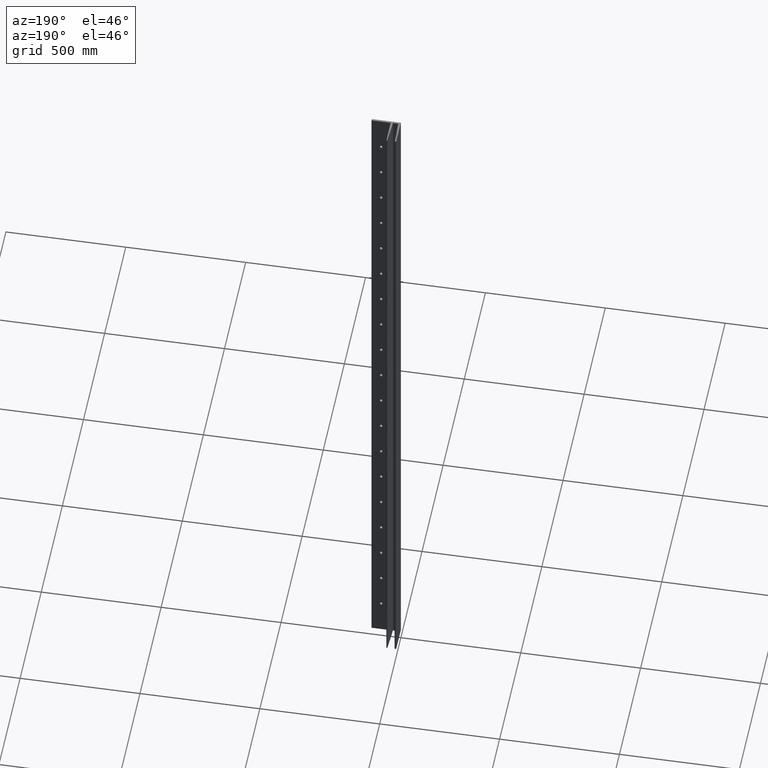
[diagram: clean part render]
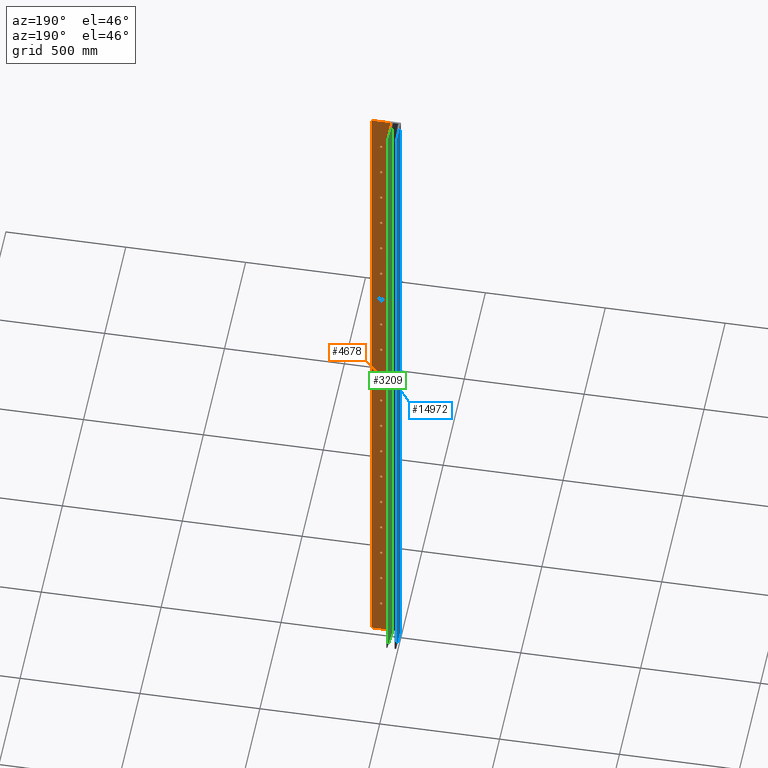
[diagram: same view with three faces highlighted in distinct colors, each labeled with its STEP entity id]
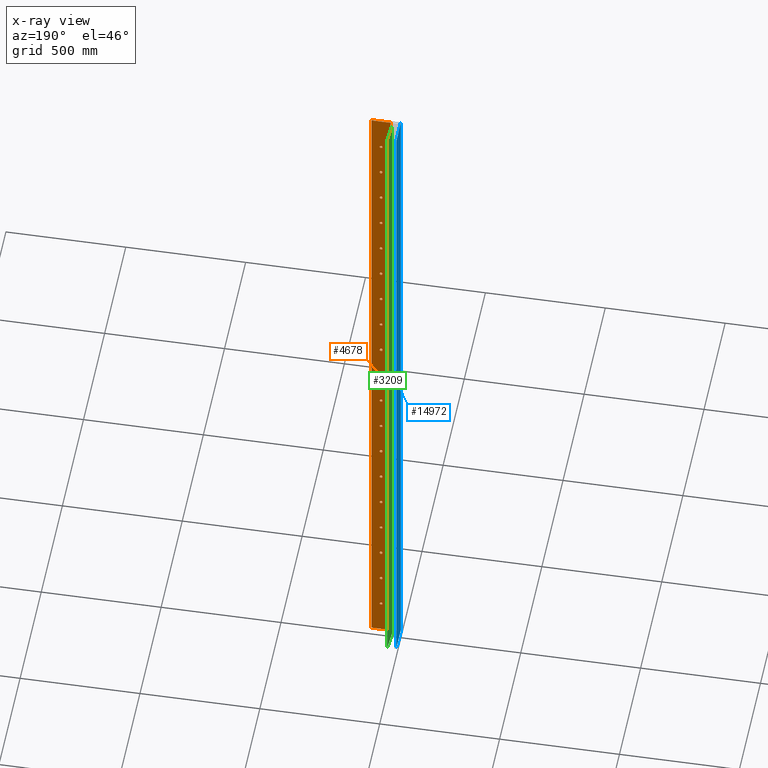
[diagram: x-ray of the same camera — body ghosted, the three highlighted faces saturated]
A machine part, auxiliary view with three faces highlighted in distinct colors.
The next image is the same camera in x-ray (body ghosted, the three faces saturated) — at least one of them is partly hidden behind the body in this view.
Their STEP definitions:

[orange] entity #4678 — the highlighted planar face has unit normal (0, -1, 0).
#78 = DIRECTION ( 'NONE',  ( 1.000000000000000000, 1.951563910473245800E-016, 0.0000000000000000000 ) ) ;
#90 = ORIENTED_EDGE ( 'NONE', *, *, #14719, .F. ) ;
#99 = CARTESIAN_POINT ( 'NONE',  ( 81.00000000000930800, 7.999999999864759700, -599.9999999999998900 ) ) ;
#195 = CARTESIAN_POINT ( 'NONE',  ( 87.00000000000932200, 7.999999999864761500, 1200.000000000000200 ) ) ;
#233 = EDGE_CURVE ( 'NONE', #5815, #13316, #5608, .T. ) ;
#296 = AXIS2_PLACEMENT_3D ( 'NONE', #7518, #3784, #15060 ) ;
#297 = CARTESIAN_POINT ( 'NONE',  ( 81.00000000000930800, 7.999999999864759700, 300.0000000000001700 ) ) ;
#313 = CIRCLE ( 'NONE', #7025, 6.000000000000005300 ) ;
#315 = EDGE_CURVE ( 'NONE', #6157, #15670, #2877, .T. ) ;
#339 = DIRECTION ( 'NONE',  ( -1.000000000000000000, -1.951563910473246100E-016, 0.0000000000000000000 ) ) ;
#379 = FACE_BOUND ( 'NONE', #2876, .T. ) ;
#388 = DIRECTION ( 'NONE',  ( -1.951563910473245800E-016, 1.000000000000000000, 0.0000000000000000000 ) ) ;
#443 = ORIENTED_EDGE ( 'NONE', *, *, #1300, .F. ) ;
#444 = CARTESIAN_POINT ( 'NONE',  ( 87.00000000000932200, 7.999999999864761500, 600.0000000000002300 ) ) ;
#468 = AXIS2_PLACEMENT_3D ( 'NONE', #11869, #15977, #13331 ) ;
#505 = CIRCLE ( 'NONE', #1220, 6.000000000000005300 ) ;
#535 = ORIENTED_EDGE ( 'NONE', *, *, #15153, .F. ) ;
#547 = DIRECTION ( 'NONE',  ( -1.951563910473245800E-016, 1.000000000000000000, 0.0000000000000000000 ) ) ;
#554 = DIRECTION ( 'NONE',  ( -1.000000000000000000, -2.891205793294675900E-016, 0.0000000000000000000 ) ) ;
#557 = EDGE_CURVE ( 'NONE', #2233, #9873, #14331, .T. ) ;
#565 = DIRECTION ( 'NONE',  ( -1.951563910473245800E-016, 1.000000000000000000, 0.0000000000000000000 ) ) ;
#581 = CIRCLE ( 'NONE', #10435, 6.000000000000005300 ) ;
#603 = DIRECTION ( 'NONE',  ( -1.000000000000000000, -2.891205793294675900E-016, 0.0000000000000000000 ) ) ;
#610 = EDGE_CURVE ( 'NONE', #13746, #15010, #3851, .T. ) ;
#650 = EDGE_CURVE ( 'NONE', #12594, #6607, #1889, .T. ) ;
#689 = CIRCLE ( 'NONE', #15582, 6.000000000000005300 ) ;
#705 = VERTEX_POINT ( 'NONE', #9364 ) ;
#838 = CARTESIAN_POINT ( 'NONE',  ( 87.00000000000932200, 7.999999999864761500, -449.9999999999997200 ) ) ;
#845 = VERTEX_POINT ( 'NONE', #15032 ) ;
#900 = CIRCLE ( 'NONE', #12807, 6.000000000000005300 ) ;
#955 = AXIS2_PLACEMENT_3D ( 'NONE', #3298, #12053, #10710 ) ;
#1035 = CARTESIAN_POINT ( 'NONE',  ( 121.0000000000093200, 7.999999999864767700, 1500.000000000000000 ) ) ;
#1124 = CARTESIAN_POINT ( 'NONE',  ( 81.00000000000930800, 7.999999999864759700, 1200.000000000000200 ) ) ;
#1130 = VERTEX_POINT ( 'NONE', #4716 ) ;
#1161 = EDGE_CURVE ( 'NONE', #15577, #10302, #689, .T. ) ;
#1216 = CARTESIAN_POINT ( 'NONE',  ( 87.00000000000932200, 7.999999999864761500, 750.0000000000002300 ) ) ;
#1220 = AXIS2_PLACEMENT_3D ( 'NONE', #9104, #1753, #8920 ) ;
#1231 = EDGE_LOOP ( 'NONE', ( #4234, #13392 ) ) ;
#1300 = EDGE_CURVE ( 'NONE', #12245, #5544, #9339, .T. ) ;
#1325 = EDGE_LOOP ( 'NONE', ( #2210, #13854 ) ) ;
#1341 = ORIENTED_EDGE ( 'NONE', *, *, #11865, .F. ) ;
#1442 = ORIENTED_EDGE ( 'NONE', *, *, #557, .F. ) ;
#1486 = DIRECTION ( 'NONE',  ( -1.951563910473245800E-016, 1.000000000000000000, 0.0000000000000000000 ) ) ;
#1523 = CIRCLE ( 'NONE', #15834, 6.000000000000005300 ) ;
#1690 = ORIENTED_EDGE ( 'NONE', *, *, #4257, .T. ) ;
#1740 = VECTOR ( 'NONE', #4839, 1000.000000000000000 ) ;
#1742 = CARTESIAN_POINT ( 'NONE',  ( 81.00000000000930800, 7.999999999864759700, -299.9999999999998300 ) ) ;
#1753 = DIRECTION ( 'NONE',  ( -1.951563910473245800E-016, 1.000000000000000000, 0.0000000000000000000 ) ) ;
#1763 = CARTESIAN_POINT ( 'NONE',  ( 81.00000000000930800, 7.999999999864759700, 2.220446049250313100E-013 ) ) ;
#1770 = FACE_BOUND ( 'NONE', #1231, .T. ) ;
#1787 = CARTESIAN_POINT ( 'NONE',  ( 75.00000000000930800, 7.999999999864758000, -1049.999999999999800 ) ) ;
#1808 = AXIS2_PLACEMENT_3D ( 'NONE', #11632, #5382, #3572 ) ;
#1889 = CIRCLE ( 'NONE', #8483, 6.000000000000005300 ) ;
#1906 = VERTEX_POINT ( 'NONE', #1035 ) ;
#2015 = CARTESIAN_POINT ( 'NONE',  ( 81.00000000000930800, 7.999999999864759700, -1049.999999999999800 ) ) ;
#2102 = DIRECTION ( 'NONE',  ( -1.000000000000000000, -2.891205793294675900E-016, 0.0000000000000000000 ) ) ;
#2107 = CARTESIAN_POINT ( 'NONE',  ( 81.00000000000930800, 7.999999999864759700, 300.0000000000001700 ) ) ;
#2161 = FACE_BOUND ( 'NONE', #4292, .T. ) ;
#2204 = CARTESIAN_POINT ( 'NONE',  ( 81.00000000000930800, 7.999999999864759700, -449.9999999999997200 ) ) ;
#2209 = EDGE_LOOP ( 'NONE', ( #5624, #15488 ) ) ;
#2210 = ORIENTED_EDGE ( 'NONE', *, *, #10963, .F. ) ;
#2233 = VERTEX_POINT ( 'NONE', #1216 ) ;
#2244 = DIRECTION ( 'NONE',  ( -1.951563910473245800E-016, 1.000000000000000000, 0.0000000000000000000 ) ) ;
#2288 = CIRCLE ( 'NONE', #8224, 6.000000000000005300 ) ;
#2323 = CIRCLE ( 'NONE', #9054, 6.000000000000005300 ) ;
#2399 = VERTEX_POINT ( 'NONE', #3899 ) ;
#2407 = AXIS2_PLACEMENT_3D ( 'NONE', #4007, #1486, #3967 ) ;
#2491 = ORIENTED_EDGE ( 'NONE', *, *, #7300, .F. ) ;
#2518 = VERTEX_POINT ( 'NONE', #1787 ) ;
#2633 = EDGE_CURVE ( 'NONE', #6607, #12594, #12619, .T. ) ;
#2839 = DIRECTION ( 'NONE',  ( -1.951563910473245800E-016, 1.000000000000000000, 0.0000000000000000000 ) ) ;
#2867 = DIRECTION ( 'NONE',  ( -1.951563910473245800E-016, 1.000000000000000000, 0.0000000000000000000 ) ) ;
#2876 = EDGE_LOOP ( 'NONE', ( #13138, #13589 ) ) ;
#2877 = CIRCLE ( 'NONE', #6883, 6.000000000000005300 ) ;
#3064 = DIRECTION ( 'NONE',  ( -1.000000000000000000, -2.891205793294675900E-016, 0.0000000000000000000 ) ) ;
#3142 = EDGE_CURVE ( 'NONE', #8218, #5423, #11563, .T. ) ;
#3150 = FACE_BOUND ( 'NONE', #9777, .T. ) ;
#3161 = DIRECTION ( 'NONE',  ( -1.000000000000000000, -2.891205793294675900E-016, 0.0000000000000000000 ) ) ;
#3188 = AXIS2_PLACEMENT_3D ( 'NONE', #13246, #6961, #15778 ) ;
#3259 = EDGE_CURVE ( 'NONE', #8324, #14813, #11358, .T. ) ;
#3272 = DIRECTION ( 'NONE',  ( -1.000000000000000000, -2.891205793294675900E-016, 0.0000000000000000000 ) ) ;
#3287 = DIRECTION ( 'NONE',  ( -1.951563910473245800E-016, 1.000000000000000000, 0.0000000000000000000 ) ) ;
#3298 = CARTESIAN_POINT ( 'NONE',  ( 81.00000000000930800, 7.999999999864759700, -750.0000000000000000 ) ) ;
#3335 = CARTESIAN_POINT ( 'NONE',  ( 87.00000000000932200, 7.999999999864761500, 2.227793930045197400E-013 ) ) ;
#3451 = CIRCLE ( 'NONE', #12494, 6.000000000000005300 ) ;
#3479 = EDGE_LOOP ( 'NONE', ( #11273, #11729 ) ) ;
#3513 = DIRECTION ( 'NONE',  ( -1.000000000000000000, -2.891205793294675900E-016, 0.0000000000000000000 ) ) ;
#3572 = DIRECTION ( 'NONE',  ( -1.000000000000000000, -2.891205793294675900E-016, 0.0000000000000000000 ) ) ;
#3603 = DIRECTION ( 'NONE',  ( -1.000000000000000000, -2.891205793294675900E-016, 0.0000000000000000000 ) ) ;
#3715 = DIRECTION ( 'NONE',  ( -1.951563910473245800E-016, 1.000000000000000000, 0.0000000000000000000 ) ) ;
#3746 = DIRECTION ( 'NONE',  ( -1.000000000000000000, -2.891205793294675900E-016, 0.0000000000000000000 ) ) ;
#3752 = FACE_OUTER_BOUND ( 'NONE', #15332, .T. ) ;
#3759 = AXIS2_PLACEMENT_3D ( 'NONE', #3968, #14181, #78 ) ;
#3767 = DIRECTION ( 'NONE',  ( -1.000000000000000000, -2.891205793294675900E-016, 0.0000000000000000000 ) ) ;
#3784 = DIRECTION ( 'NONE',  ( -1.951563910473245800E-016, 1.000000000000000000, 0.0000000000000000000 ) ) ;
#3851 = CIRCLE ( 'NONE', #13875, 6.000000000000005300 ) ;
#3856 = AXIS2_PLACEMENT_3D ( 'NONE', #4970, #11226, #3746 ) ;
#3875 = DIRECTION ( 'NONE',  ( -1.000000000000000000, -2.891205793294675900E-016, 0.0000000000000000000 ) ) ;
#3899 = CARTESIAN_POINT ( 'NONE',  ( 75.00000000000930800, 7.999999999864758000, 150.0000000000001400 ) ) ;
#3967 = DIRECTION ( 'NONE',  ( -1.000000000000000000, -2.891205793294675900E-016, 0.0000000000000000000 ) ) ;
#3968 = CARTESIAN_POINT ( 'NONE',  ( 121.0000000000093200, 7.999999999864767700, 1500.000000000000000 ) ) ;
#3985 = VERTEX_POINT ( 'NONE', #3335 ) ;
#4000 = ORIENTED_EDGE ( 'NONE', *, *, #6972, .F. ) ;
#4007 = CARTESIAN_POINT ( 'NONE',  ( 81.00000000000930800, 7.999999999864759700, 900.0000000000002300 ) ) ;
#4162 = DIRECTION ( 'NONE',  ( -1.951563910473245800E-016, 1.000000000000000000, 0.0000000000000000000 ) ) ;
#4166 = CARTESIAN_POINT ( 'NONE',  ( 75.00000000000930800, 7.999999999864758000, -899.9999999999998900 ) ) ;
#4222 = CARTESIAN_POINT ( 'NONE',  ( 75.00000000000930800, 7.999999999864758000, 2.220446049250313100E-013 ) ) ;
#4234 = ORIENTED_EDGE ( 'NONE', *, *, #7248, .F. ) ;
#4246 = DIRECTION ( 'NONE',  ( -1.000000000000000000, -2.891205793294675900E-016, 0.0000000000000000000 ) ) ;
#4257 = EDGE_CURVE ( 'NONE', #1906, #12700, #5059, .T. ) ;
#4259 = LINE ( 'NONE', #7669, #10364 ) ;
#4265 = CARTESIAN_POINT ( 'NONE',  ( 75.00000000000930800, 7.999999999864758000, 1050.000000000000200 ) ) ;
#4292 = EDGE_LOOP ( 'NONE', ( #6081, #6329 ) ) ;
#4305 = CIRCLE ( 'NONE', #16308, 6.000000000000005300 ) ;
#4330 = FACE_BOUND ( 'NONE', #15172, .T. ) ;
#4348 = DIRECTION ( 'NONE',  ( -1.000000000000000000, -2.891205793294675900E-016, 0.0000000000000000000 ) ) ;
#4359 = CARTESIAN_POINT ( 'NONE',  ( 87.00000000000932200, 7.999999999864761500, -149.9999999999999100 ) ) ;
#4393 = DIRECTION ( 'NONE',  ( -1.951563910473245800E-016, 1.000000000000000000, 0.0000000000000000000 ) ) ;
#4401 = CARTESIAN_POINT ( 'NONE',  ( 81.00000000000930800, 7.999999999864759700, -899.9999999999998900 ) ) ;
#4494 = CARTESIAN_POINT ( 'NONE',  ( 75.00000000000930800, 7.999999999864758000, -1349.999999999999500 ) ) ;
#4599 = CARTESIAN_POINT ( 'NONE',  ( 87.00000000000932200, 7.999999999864761500, 1350.000000000000000 ) ) ;
#4621 = CARTESIAN_POINT ( 'NONE',  ( 87.00000000000932200, 7.999999999864761500, 150.0000000000001400 ) ) ;
#4663 = CIRCLE ( 'NONE', #5450, 6.000000000000005300 ) ;
#4678 = ADVANCED_FACE ( 'NONE', ( #16003, #5879, #3752, #7478, #1770, #12172, #16180, #6875, #6268, #3150, #6678, #2161, #15596, #5489, #14822, #379, #9639, #14227, #4330, #8849 ), #5305, .F. ) ;
#4709 = EDGE_CURVE ( 'NONE', #14836, #2399, #11004, .T. ) ;
#4716 = CARTESIAN_POINT ( 'NONE',  ( 87.00000000000932200, 7.999999999864761500, -1349.999999999999500 ) ) ;
#4726 = CARTESIAN_POINT ( 'NONE',  ( 121.0000000000093200, 7.999999999864767700, 1500.000000000000000 ) ) ;
#4728 = AXIS2_PLACEMENT_3D ( 'NONE', #2107, #5884, #3272 ) ;
#4839 = DIRECTION ( 'NONE',  ( -0.0000000000000000000, -0.0000000000000000000, -1.000000000000000000 ) ) ;
#4898 = CARTESIAN_POINT ( 'NONE',  ( 75.00000000000930800, 7.999999999864758000, 1200.000000000000200 ) ) ;
#4936 = EDGE_CURVE ( 'NONE', #14713, #6648, #505, .T. ) ;
#4970 = CARTESIAN_POINT ( 'NONE',  ( 81.00000000000930800, 7.999999999864759700, 900.0000000000002300 ) ) ;
#4995 = CARTESIAN_POINT ( 'NONE',  ( 81.00000000000930800, 7.999999999864759700, -1349.999999999999500 ) ) ;
#5059 = LINE ( 'NONE', #13670, #1740 ) ;
#5138 = AXIS2_PLACEMENT_3D ( 'NONE', #10973, #2244, #3513 ) ;
#5195 = CARTESIAN_POINT ( 'NONE',  ( 81.00000000000930800, 7.999999999864759700, 150.0000000000001400 ) ) ;
#5245 = DIRECTION ( 'NONE',  ( -1.000000000000000000, -2.891205793294675900E-016, 0.0000000000000000000 ) ) ;
#5251 = DIRECTION ( 'NONE',  ( -1.951563910473245800E-016, 1.000000000000000000, 0.0000000000000000000 ) ) ;
#5280 = AXIS2_PLACEMENT_3D ( 'NONE', #4995, #11250, #3767 ) ;
#5305 = PLANE ( 'NONE',  #3759 ) ;
#5355 = VERTEX_POINT ( 'NONE', #7350 ) ;
#5358 = CIRCLE ( 'NONE', #12947, 6.000000000000005300 ) ;
#5382 = DIRECTION ( 'NONE',  ( -1.951563910473245800E-016, 1.000000000000000000, 0.0000000000000000000 ) ) ;
#5423 = VERTEX_POINT ( 'NONE', #8932 ) ;
#5450 = AXIS2_PLACEMENT_3D ( 'NONE', #9311, #10589, #3064 ) ;
#5489 = FACE_BOUND ( 'NONE', #14534, .T. ) ;
#5544 = VERTEX_POINT ( 'NONE', #10689 ) ;
#5578 = CARTESIAN_POINT ( 'NONE',  ( 87.00000000000932200, 7.999999999864761500, -299.9999999999998300 ) ) ;
#5608 = CIRCLE ( 'NONE', #7937, 6.000000000000005300 ) ;
#5624 = ORIENTED_EDGE ( 'NONE', *, *, #15249, .F. ) ;
#5689 = VERTEX_POINT ( 'NONE', #4494 ) ;
#5697 = AXIS2_PLACEMENT_3D ( 'NONE', #1763, #4393, #554 ) ;
#5700 = VERTEX_POINT ( 'NONE', #12035 ) ;
#5738 = DIRECTION ( 'NONE',  ( -1.000000000000000000, -2.891205793294675900E-016, 0.0000000000000000000 ) ) ;
#5811 = ORIENTED_EDGE ( 'NONE', *, *, #14750, .F. ) ;
#5815 = VERTEX_POINT ( 'NONE', #9596 ) ;
#5818 = ORIENTED_EDGE ( 'NONE', *, *, #4709, .F. ) ;
#5879 = FACE_BOUND ( 'NONE', #11739, .T. ) ;
#5884 = DIRECTION ( 'NONE',  ( -1.951563910473245800E-016, 1.000000000000000000, 0.0000000000000000000 ) ) ;
#5922 = ORIENTED_EDGE ( 'NONE', *, *, #15863, .F. ) ;
#5929 = CARTESIAN_POINT ( 'NONE',  ( 121.0000000000093200, 7.999999999864767700, -1500.000000000000000 ) ) ;
#5984 = ORIENTED_EDGE ( 'NONE', *, *, #8221, .F. ) ;
#5995 = ORIENTED_EDGE ( 'NONE', *, *, #4936, .F. ) ;
#6081 = ORIENTED_EDGE ( 'NONE', *, *, #3259, .F. ) ;
#6157 = VERTEX_POINT ( 'NONE', #14359 ) ;
#6268 = FACE_BOUND ( 'NONE', #10733, .T. ) ;
#6272 = DIRECTION ( 'NONE',  ( -1.951563910473245800E-016, 1.000000000000000000, 0.0000000000000000000 ) ) ;
#6279 = CARTESIAN_POINT ( 'NONE',  ( 87.00000000000932200, 7.999999999864761500, 300.0000000000001700 ) ) ;
#6301 = EDGE_CURVE ( 'NONE', #5700, #8191, #900, .T. ) ;
#6329 = ORIENTED_EDGE ( 'NONE', *, *, #8873, .F. ) ;
#6331 = CARTESIAN_POINT ( 'NONE',  ( 87.00000000000932200, 7.999999999864761500, -899.9999999999998900 ) ) ;
#6365 = LINE ( 'NONE', #4726, #13683 ) ;
#6417 = VECTOR ( 'NONE', #8254, 1000.000000000000000 ) ;
#6510 = DIRECTION ( 'NONE',  ( -1.000000000000000000, -2.891205793294675900E-016, 0.0000000000000000000 ) ) ;
#6607 = VERTEX_POINT ( 'NONE', #12888 ) ;
#6626 = EDGE_CURVE ( 'NONE', #2518, #8780, #3451, .T. ) ;
#6627 = VERTEX_POINT ( 'NONE', #4166 ) ;
#6648 = VERTEX_POINT ( 'NONE', #14284 ) ;
#6665 = CIRCLE ( 'NONE', #5280, 6.000000000000005300 ) ;
#6675 = CIRCLE ( 'NONE', #16190, 6.000000000000005300 ) ;
#6678 = FACE_BOUND ( 'NONE', #7576, .T. ) ;
#6802 = CARTESIAN_POINT ( 'NONE',  ( 87.00000000000932200, 7.999999999864761500, 450.0000000000002800 ) ) ;
#6818 = VERTEX_POINT ( 'NONE', #6996 ) ;
#6875 = FACE_BOUND ( 'NONE', #7827, .T. ) ;
#6883 = AXIS2_PLACEMENT_3D ( 'NONE', #99, #12692, #3875 ) ;
#6961 = DIRECTION ( 'NONE',  ( -1.951563910473245800E-016, 1.000000000000000000, 0.0000000000000000000 ) ) ;
#6972 = EDGE_CURVE ( 'NONE', #1906, #13832, #6365, .T. ) ;
#6996 = CARTESIAN_POINT ( 'NONE',  ( 75.00000000000930800, 7.999999999864758000, 450.0000000000002800 ) ) ;
#7025 = AXIS2_PLACEMENT_3D ( 'NONE', #13687, #15003, #16250 ) ;
#7248 = EDGE_CURVE ( 'NONE', #5423, #8218, #8397, .T. ) ;
#7300 = EDGE_CURVE ( 'NONE', #13310, #6818, #1523, .T. ) ;
#7327 = DIRECTION ( 'NONE',  ( -1.000000000000000000, -1.951563910473246100E-016, 0.0000000000000000000 ) ) ;
#7350 = CARTESIAN_POINT ( 'NONE',  ( 75.00000000000930800, 7.999999999864758000, -750.0000000000000000 ) ) ;
#7356 = DIRECTION ( 'NONE',  ( -1.000000000000000000, -2.891205793294675900E-016, 0.0000000000000000000 ) ) ;
#7437 = DIRECTION ( 'NONE',  ( -1.000000000000000000, -2.891205793294675900E-016, 0.0000000000000000000 ) ) ;
#7448 = CIRCLE ( 'NONE', #296, 6.000000000000005300 ) ;
#7475 = DIRECTION ( 'NONE',  ( -1.000000000000000000, -2.891205793294675900E-016, 0.0000000000000000000 ) ) ;
#7477 = EDGE_LOOP ( 'NONE', ( #535, #5995 ) ) ;
#7478 = FACE_BOUND ( 'NONE', #3479, .T. ) ;
#7499 = CARTESIAN_POINT ( 'NONE',  ( 81.00000000000930800, 7.999999999864759700, 1350.000000000000000 ) ) ;
#7508 = DIRECTION ( 'NONE',  ( -1.951563910473245800E-016, 1.000000000000000000, 0.0000000000000000000 ) ) ;
#7518 = CARTESIAN_POINT ( 'NONE',  ( 81.00000000000930800, 7.999999999864759700, -1199.999999999999800 ) ) ;
#7565 = CARTESIAN_POINT ( 'NONE',  ( 87.00000000000932200, 7.999999999864761500, 900.0000000000002300 ) ) ;
#7576 = EDGE_LOOP ( 'NONE', ( #12356, #16315 ) ) ;
#7669 = CARTESIAN_POINT ( 'NONE',  ( 121.0000000000093200, 7.999999999864767700, -1500.000000000000000 ) ) ;
#7702 = EDGE_LOOP ( 'NONE', ( #7887, #10603 ) ) ;
#7712 = EDGE_CURVE ( 'NONE', #5544, #12245, #313, .T. ) ;
#7713 = CARTESIAN_POINT ( 'NONE',  ( 81.00000000000930800, 7.999999999864759700, 1200.000000000000200 ) ) ;
#7727 = ORIENTED_EDGE ( 'NONE', *, *, #7798, .T. ) ;
#7728 = CIRCLE ( 'NONE', #8950, 6.000000000000005300 ) ;
#7738 = ORIENTED_EDGE ( 'NONE', *, *, #9333, .F. ) ;
#7791 = CARTESIAN_POINT ( 'NONE',  ( 81.00000000000930800, 7.999999999864759700, -149.9999999999999100 ) ) ;
#7798 = EDGE_CURVE ( 'NONE', #12700, #845, #4259, .T. ) ;
#7804 = DIRECTION ( 'NONE',  ( -1.951563910473245800E-016, 1.000000000000000000, 0.0000000000000000000 ) ) ;
#7827 = EDGE_LOOP ( 'NONE', ( #90, #2491 ) ) ;
#7887 = ORIENTED_EDGE ( 'NONE', *, *, #610, .F. ) ;
#7937 = AXIS2_PLACEMENT_3D ( 'NONE', #12415, #3715, #2102 ) ;
#7991 = EDGE_CURVE ( 'NONE', #1130, #5689, #2288, .T. ) ;
#8025 = EDGE_LOOP ( 'NONE', ( #10578, #13782 ) ) ;
#8191 = VERTEX_POINT ( 'NONE', #6279 ) ;
#8212 = VERTEX_POINT ( 'NONE', #6331 ) ;
#8218 = VERTEX_POINT ( 'NONE', #7565 ) ;
#8221 = EDGE_CURVE ( 'NONE', #13316, #5815, #7448, .T. ) ;
#8224 = AXIS2_PLACEMENT_3D ( 'NONE', #9750, #14979, #7437 ) ;
#8246 = CARTESIAN_POINT ( 'NONE',  ( 75.00000000000930800, 7.999999999864758000, 750.0000000000002300 ) ) ;
#8254 = DIRECTION ( 'NONE',  ( -0.0000000000000000000, -0.0000000000000000000, -1.000000000000000000 ) ) ;
#8324 = VERTEX_POINT ( 'NONE', #11204 ) ;
#8397 = CIRCLE ( 'NONE', #2407, 6.000000000000005300 ) ;
#8483 = AXIS2_PLACEMENT_3D ( 'NONE', #13860, #6272, #15156 ) ;
#8780 = VERTEX_POINT ( 'NONE', #15782 ) ;
#8849 = FACE_BOUND ( 'NONE', #2209, .T. ) ;
#8873 = EDGE_CURVE ( 'NONE', #14813, #8324, #2323, .T. ) ;
#8880 = CARTESIAN_POINT ( 'NONE',  ( 75.00000000000930800, 7.999999999864758000, -449.9999999999997200 ) ) ;
#8920 = DIRECTION ( 'NONE',  ( -1.000000000000000000, -2.891205793294675900E-016, 0.0000000000000000000 ) ) ;
#8932 = CARTESIAN_POINT ( 'NONE',  ( 75.00000000000930800, 7.999999999864758000, 900.0000000000002300 ) ) ;
#8950 = AXIS2_PLACEMENT_3D ( 'NONE', #14563, #547, #11888 ) ;
#8973 = EDGE_CURVE ( 'NONE', #705, #5355, #13338, .T. ) ;
#9054 = AXIS2_PLACEMENT_3D ( 'NONE', #12898, #7804, #14355 ) ;
#9083 = EDGE_CURVE ( 'NONE', #5355, #705, #14771, .T. ) ;
#9090 = CARTESIAN_POINT ( 'NONE',  ( 75.00000000000930800, 7.999999999864758000, -299.9999999999998300 ) ) ;
#9104 = CARTESIAN_POINT ( 'NONE',  ( 81.00000000000930800, 7.999999999864759700, 600.0000000000002300 ) ) ;
#9224 = CIRCLE ( 'NONE', #13427, 6.000000000000005300 ) ;
#9311 = CARTESIAN_POINT ( 'NONE',  ( 81.00000000000930800, 7.999999999864759700, -1049.999999999999800 ) ) ;
#9333 = EDGE_CURVE ( 'NONE', #8780, #2518, #4663, .T. ) ;
#9339 = CIRCLE ( 'NONE', #12989, 6.000000000000005300 ) ;
#9364 = CARTESIAN_POINT ( 'NONE',  ( 87.00000000000932200, 7.999999999864761500, -750.0000000000000000 ) ) ;
#9585 = EDGE_CURVE ( 'NONE', #13305, #16211, #11241, .T. ) ;
#9596 = CARTESIAN_POINT ( 'NONE',  ( 75.00000000000930800, 7.999999999864758000, -1199.999999999999800 ) ) ;
#9639 = FACE_BOUND ( 'NONE', #1325, .T. ) ;
#9674 = CARTESIAN_POINT ( 'NONE',  ( 81.00000000000930800, 7.999999999864759700, -449.9999999999997200 ) ) ;
#9750 = CARTESIAN_POINT ( 'NONE',  ( 81.00000000000930800, 7.999999999864759700, -1349.999999999999500 ) ) ;
#9759 = EDGE_CURVE ( 'NONE', #13303, #3985, #5358, .T. ) ;
#9777 = EDGE_LOOP ( 'NONE', ( #1341, #5818 ) ) ;
#9801 = EDGE_CURVE ( 'NONE', #16211, #13305, #7728, .T. ) ;
#9873 = VERTEX_POINT ( 'NONE', #8246 ) ;
#10030 = DIRECTION ( 'NONE',  ( -1.951563910473245800E-016, 1.000000000000000000, 0.0000000000000000000 ) ) ;
#10148 = CARTESIAN_POINT ( 'NONE',  ( 81.00000000000930800, 7.999999999864759700, 750.0000000000002300 ) ) ;
#10167 = DIRECTION ( 'NONE',  ( -1.951563910473245800E-016, 1.000000000000000000, 0.0000000000000000000 ) ) ;
#10224 = CARTESIAN_POINT ( 'NONE',  ( 87.00000000000932200, 7.999999999864761500, -1199.999999999999800 ) ) ;
#10297 = DIRECTION ( 'NONE',  ( -1.000000000000000000, -2.891205793294675900E-016, 0.0000000000000000000 ) ) ;
#10302 = VERTEX_POINT ( 'NONE', #8880 ) ;
#10364 = VECTOR ( 'NONE', #339, 1000.000000000000000 ) ;
#10435 = AXIS2_PLACEMENT_3D ( 'NONE', #4401, #565, #4348 ) ;
#10483 = DIRECTION ( 'NONE',  ( -1.000000000000000000, -2.891205793294675900E-016, 0.0000000000000000000 ) ) ;
#10530 = DIRECTION ( 'NONE',  ( -1.000000000000000000, -2.891205793294675900E-016, 0.0000000000000000000 ) ) ;
#10568 = ORIENTED_EDGE ( 'NONE', *, *, #1161, .F. ) ;
#10578 = ORIENTED_EDGE ( 'NONE', *, *, #9801, .F. ) ;
#10589 = DIRECTION ( 'NONE',  ( -1.951563910473245800E-016, 1.000000000000000000, 0.0000000000000000000 ) ) ;
#10603 = ORIENTED_EDGE ( 'NONE', *, *, #15251, .F. ) ;
#10664 = EDGE_CURVE ( 'NONE', #8191, #5700, #14811, .T. ) ;
#10689 = CARTESIAN_POINT ( 'NONE',  ( 75.00000000000930800, 7.999999999864758000, 1350.000000000000000 ) ) ;
#10710 = DIRECTION ( 'NONE',  ( -1.000000000000000000, -2.891205793294675900E-016, 0.0000000000000000000 ) ) ;
#10728 = ORIENTED_EDGE ( 'NONE', *, *, #233, .F. ) ;
#10733 = EDGE_LOOP ( 'NONE', ( #15647, #15993 ) ) ;
#10748 = ORIENTED_EDGE ( 'NONE', *, *, #12226, .F. ) ;
#10839 = CIRCLE ( 'NONE', #5697, 6.000000000000005300 ) ;
#10963 = EDGE_CURVE ( 'NONE', #6627, #8212, #581, .T. ) ;
#10973 = CARTESIAN_POINT ( 'NONE',  ( 81.00000000000930800, 7.999999999864759700, -750.0000000000000000 ) ) ;
#11004 = CIRCLE ( 'NONE', #12684, 6.000000000000005300 ) ;
#11137 = CIRCLE ( 'NONE', #11145, 6.000000000000005300 ) ;
#11145 = AXIS2_PLACEMENT_3D ( 'NONE', #14517, #15776, #603 ) ;
#11204 = CARTESIAN_POINT ( 'NONE',  ( 75.00000000000930800, 7.999999999864758000, -149.9999999999999100 ) ) ;
#11226 = DIRECTION ( 'NONE',  ( -1.951563910473245800E-016, 1.000000000000000000, 0.0000000000000000000 ) ) ;
#11241 = CIRCLE ( 'NONE', #11780, 6.000000000000005300 ) ;
#11250 = DIRECTION ( 'NONE',  ( -1.951563910473245800E-016, 1.000000000000000000, 0.0000000000000000000 ) ) ;
#11273 = ORIENTED_EDGE ( 'NONE', *, *, #650, .F. ) ;
#11276 = AXIS2_PLACEMENT_3D ( 'NONE', #10148, #13984, #12596 ) ;
#11358 = CIRCLE ( 'NONE', #14864, 6.000000000000005300 ) ;
#11563 = CIRCLE ( 'NONE', #3856, 6.000000000000005300 ) ;
#11632 = CARTESIAN_POINT ( 'NONE',  ( 81.00000000000930800, 7.999999999864759700, 150.0000000000001400 ) ) ;
#11670 = ORIENTED_EDGE ( 'NONE', *, *, #6626, .F. ) ;
#11729 = ORIENTED_EDGE ( 'NONE', *, *, #2633, .F. ) ;
#11739 = EDGE_LOOP ( 'NONE', ( #15703, #443 ) ) ;
#11757 = CARTESIAN_POINT ( 'NONE',  ( 81.00000000000930800, 7.999999999864759700, 450.0000000000002800 ) ) ;
#11780 = AXIS2_PLACEMENT_3D ( 'NONE', #1742, #14391, #10530 ) ;
#11840 = ORIENTED_EDGE ( 'NONE', *, *, #12225, .F. ) ;
#11865 = EDGE_CURVE ( 'NONE', #2399, #14836, #14502, .T. ) ;
#11869 = CARTESIAN_POINT ( 'NONE',  ( 81.00000000000930800, 7.999999999864759700, 1050.000000000000200 ) ) ;
#11888 = DIRECTION ( 'NONE',  ( -1.000000000000000000, -2.891205793294675900E-016, 0.0000000000000000000 ) ) ;
#11917 = DIRECTION ( 'NONE',  ( -1.951563910473245800E-016, 1.000000000000000000, 0.0000000000000000000 ) ) ;
#12035 = CARTESIAN_POINT ( 'NONE',  ( 75.00000000000930800, 7.999999999864758000, 300.0000000000001700 ) ) ;
#12053 = DIRECTION ( 'NONE',  ( -1.951563910473245800E-016, 1.000000000000000000, 0.0000000000000000000 ) ) ;
#12125 = DIRECTION ( 'NONE',  ( -1.951563910473245800E-016, 1.000000000000000000, 0.0000000000000000000 ) ) ;
#12172 = FACE_BOUND ( 'NONE', #12569, .T. ) ;
#12182 = DIRECTION ( 'NONE',  ( -1.000000000000000000, -2.891205793294675900E-016, 0.0000000000000000000 ) ) ;
#12225 = EDGE_CURVE ( 'NONE', #13832, #845, #14173, .T. ) ;
#12226 = EDGE_CURVE ( 'NONE', #15670, #6157, #11137, .T. ) ;
#12245 = VERTEX_POINT ( 'NONE', #4599 ) ;
#12346 = CARTESIAN_POINT ( 'NONE',  ( 40.99999999998218700, 7.999999999864752600, 1500.000000000000000 ) ) ;
#12356 = ORIENTED_EDGE ( 'NONE', *, *, #9759, .F. ) ;
#12415 = CARTESIAN_POINT ( 'NONE',  ( 81.00000000000930800, 7.999999999864759700, -1199.999999999999800 ) ) ;
#12448 = CARTESIAN_POINT ( 'NONE',  ( 81.00000000000930800, 7.999999999864759700, 2.220446049250313100E-013 ) ) ;
#12494 = AXIS2_PLACEMENT_3D ( 'NONE', #2015, #3287, #5738 ) ;
#12558 = CIRCLE ( 'NONE', #3188, 6.000000000000005300 ) ;
#12569 = EDGE_LOOP ( 'NONE', ( #5811, #1442 ) ) ;
#12594 = VERTEX_POINT ( 'NONE', #4265 ) ;
#12596 = DIRECTION ( 'NONE',  ( -1.000000000000000000, -2.891205793294675900E-016, 0.0000000000000000000 ) ) ;
#12619 = CIRCLE ( 'NONE', #468, 6.000000000000005300 ) ;
#12684 = AXIS2_PLACEMENT_3D ( 'NONE', #5195, #10167, #14006 ) ;
#12692 = DIRECTION ( 'NONE',  ( -1.951563910473245800E-016, 1.000000000000000000, 0.0000000000000000000 ) ) ;
#12700 = VERTEX_POINT ( 'NONE', #5929 ) ;
#12782 = CARTESIAN_POINT ( 'NONE',  ( 81.00000000000930800, 7.999999999864759700, 450.0000000000002800 ) ) ;
#12807 = AXIS2_PLACEMENT_3D ( 'NONE', #297, #4162, #5245 ) ;
#12860 = AXIS2_PLACEMENT_3D ( 'NONE', #13613, #14707, #14869 ) ;
#12888 = CARTESIAN_POINT ( 'NONE',  ( 87.00000000000932200, 7.999999999864761500, 1050.000000000000200 ) ) ;
#12898 = CARTESIAN_POINT ( 'NONE',  ( 81.00000000000930800, 7.999999999864759700, -149.9999999999999100 ) ) ;
#12947 = AXIS2_PLACEMENT_3D ( 'NONE', #12448, #13885, #7475 ) ;
#12989 = AXIS2_PLACEMENT_3D ( 'NONE', #7499, #10030, #3603 ) ;
#13138 = ORIENTED_EDGE ( 'NONE', *, *, #9083, .F. ) ;
#13155 = CARTESIAN_POINT ( 'NONE',  ( 81.00000000000930800, 7.999999999864759700, 750.0000000000002300 ) ) ;
#13194 = CARTESIAN_POINT ( 'NONE',  ( 40.99999999998218700, 7.999999999864752600, 1500.000000000000000 ) ) ;
#13246 = CARTESIAN_POINT ( 'NONE',  ( 81.00000000000930800, 7.999999999864759700, 600.0000000000002300 ) ) ;
#13269 = EDGE_CURVE ( 'NONE', #3985, #13303, #10839, .T. ) ;
#13303 = VERTEX_POINT ( 'NONE', #4222 ) ;
#13305 = VERTEX_POINT ( 'NONE', #5578 ) ;
#13310 = VERTEX_POINT ( 'NONE', #6802 ) ;
#13316 = VERTEX_POINT ( 'NONE', #10224 ) ;
#13331 = DIRECTION ( 'NONE',  ( -1.000000000000000000, -2.891205793294675900E-016, 0.0000000000000000000 ) ) ;
#13338 = CIRCLE ( 'NONE', #955, 6.000000000000005300 ) ;
#13392 = ORIENTED_EDGE ( 'NONE', *, *, #3142, .F. ) ;
#13427 = AXIS2_PLACEMENT_3D ( 'NONE', #1124, #2867, #10297 ) ;
#13589 = ORIENTED_EDGE ( 'NONE', *, *, #8973, .F. ) ;
#13597 = DIRECTION ( 'NONE',  ( -1.951563910473245800E-016, 1.000000000000000000, 0.0000000000000000000 ) ) ;
#13613 = CARTESIAN_POINT ( 'NONE',  ( 81.00000000000930800, 7.999999999864759700, -899.9999999999998900 ) ) ;
#13670 = CARTESIAN_POINT ( 'NONE',  ( 121.0000000000093200, 7.999999999864767700, 1500.000000000000000 ) ) ;
#13683 = VECTOR ( 'NONE', #7327, 1000.000000000000000 ) ;
#13687 = CARTESIAN_POINT ( 'NONE',  ( 81.00000000000930800, 7.999999999864759700, 1350.000000000000000 ) ) ;
#13746 = VERTEX_POINT ( 'NONE', #4898 ) ;
#13764 = CIRCLE ( 'NONE', #12860, 6.000000000000005300 ) ;
#13782 = ORIENTED_EDGE ( 'NONE', *, *, #9585, .F. ) ;
#13832 = VERTEX_POINT ( 'NONE', #12346 ) ;
#13854 = ORIENTED_EDGE ( 'NONE', *, *, #16302, .F. ) ;
#13860 = CARTESIAN_POINT ( 'NONE',  ( 81.00000000000930800, 7.999999999864759700, 1050.000000000000200 ) ) ;
#13875 = AXIS2_PLACEMENT_3D ( 'NONE', #7713, #7508, #15259 ) ;
#13885 = DIRECTION ( 'NONE',  ( -1.951563910473245800E-016, 1.000000000000000000, 0.0000000000000000000 ) ) ;
#13984 = DIRECTION ( 'NONE',  ( -1.951563910473245800E-016, 1.000000000000000000, 0.0000000000000000000 ) ) ;
#13999 = CIRCLE ( 'NONE', #15255, 6.000000000000005300 ) ;
#14006 = DIRECTION ( 'NONE',  ( -1.000000000000000000, -2.891205793294675900E-016, 0.0000000000000000000 ) ) ;
#14173 = LINE ( 'NONE', #13194, #6417 ) ;
#14181 = DIRECTION ( 'NONE',  ( 1.951563910473245800E-016, -1.000000000000000000, 0.0000000000000000000 ) ) ;
#14227 = FACE_BOUND ( 'NONE', #16317, .T. ) ;
#14284 = CARTESIAN_POINT ( 'NONE',  ( 75.00000000000930800, 7.999999999864758000, 600.0000000000002300 ) ) ;
#14331 = CIRCLE ( 'NONE', #11276, 6.000000000000005300 ) ;
#14355 = DIRECTION ( 'NONE',  ( -1.000000000000000000, -2.891205793294675900E-016, 0.0000000000000000000 ) ) ;
#14359 = CARTESIAN_POINT ( 'NONE',  ( 75.00000000000930800, 7.999999999864758000, -599.9999999999998900 ) ) ;
#14391 = DIRECTION ( 'NONE',  ( -1.951563910473245800E-016, 1.000000000000000000, 0.0000000000000000000 ) ) ;
#14428 = CARTESIAN_POINT ( 'NONE',  ( 87.00000000000932200, 7.999999999864761500, -599.9999999999998900 ) ) ;
#14502 = CIRCLE ( 'NONE', #1808, 6.000000000000005300 ) ;
#14517 = CARTESIAN_POINT ( 'NONE',  ( 81.00000000000930800, 7.999999999864759700, -599.9999999999998900 ) ) ;
#14534 = EDGE_LOOP ( 'NONE', ( #5922, #10568 ) ) ;
#14563 = CARTESIAN_POINT ( 'NONE',  ( 81.00000000000930800, 7.999999999864759700, -299.9999999999998300 ) ) ;
#14707 = DIRECTION ( 'NONE',  ( -1.951563910473245800E-016, 1.000000000000000000, 0.0000000000000000000 ) ) ;
#14713 = VERTEX_POINT ( 'NONE', #444 ) ;
#14719 = EDGE_CURVE ( 'NONE', #6818, #13310, #6675, .T. ) ;
#14750 = EDGE_CURVE ( 'NONE', #9873, #2233, #13999, .T. ) ;
#14771 = CIRCLE ( 'NONE', #5138, 6.000000000000005300 ) ;
#14811 = CIRCLE ( 'NONE', #4728, 6.000000000000005300 ) ;
#14813 = VERTEX_POINT ( 'NONE', #4359 ) ;
#14822 = FACE_BOUND ( 'NONE', #15674, .T. ) ;
#14836 = VERTEX_POINT ( 'NONE', #4621 ) ;
#14864 = AXIS2_PLACEMENT_3D ( 'NONE', #7791, #2839, #10483 ) ;
#14869 = DIRECTION ( 'NONE',  ( -1.000000000000000000, -2.891205793294675900E-016, 0.0000000000000000000 ) ) ;
#14979 = DIRECTION ( 'NONE',  ( -1.951563910473245800E-016, 1.000000000000000000, 0.0000000000000000000 ) ) ;
#15003 = DIRECTION ( 'NONE',  ( -1.951563910473245800E-016, 1.000000000000000000, 0.0000000000000000000 ) ) ;
#15010 = VERTEX_POINT ( 'NONE', #195 ) ;
#15032 = CARTESIAN_POINT ( 'NONE',  ( 40.99999999998218700, 7.999999999864752600, -1500.000000000000000 ) ) ;
#15060 = DIRECTION ( 'NONE',  ( -1.000000000000000000, -2.891205793294675900E-016, 0.0000000000000000000 ) ) ;
#15153 = EDGE_CURVE ( 'NONE', #6648, #14713, #12558, .T. ) ;
#15156 = DIRECTION ( 'NONE',  ( -1.000000000000000000, -2.891205793294675900E-016, 0.0000000000000000000 ) ) ;
#15172 = EDGE_LOOP ( 'NONE', ( #10728, #5984 ) ) ;
#15249 = EDGE_CURVE ( 'NONE', #5689, #1130, #6665, .T. ) ;
#15251 = EDGE_CURVE ( 'NONE', #15010, #13746, #9224, .T. ) ;
#15255 = AXIS2_PLACEMENT_3D ( 'NONE', #13155, #11917, #3161 ) ;
#15259 = DIRECTION ( 'NONE',  ( -1.000000000000000000, -2.891205793294675900E-016, 0.0000000000000000000 ) ) ;
#15332 = EDGE_LOOP ( 'NONE', ( #7727, #11840, #4000, #1690 ) ) ;
#15488 = ORIENTED_EDGE ( 'NONE', *, *, #7991, .F. ) ;
#15577 = VERTEX_POINT ( 'NONE', #838 ) ;
#15582 = AXIS2_PLACEMENT_3D ( 'NONE', #9674, #12125, #7356 ) ;
#15596 = FACE_BOUND ( 'NONE', #8025, .T. ) ;
#15647 = ORIENTED_EDGE ( 'NONE', *, *, #6301, .F. ) ;
#15670 = VERTEX_POINT ( 'NONE', #14428 ) ;
#15674 = EDGE_LOOP ( 'NONE', ( #15840, #10748 ) ) ;
#15703 = ORIENTED_EDGE ( 'NONE', *, *, #7712, .F. ) ;
#15776 = DIRECTION ( 'NONE',  ( -1.951563910473245800E-016, 1.000000000000000000, 0.0000000000000000000 ) ) ;
#15778 = DIRECTION ( 'NONE',  ( -1.000000000000000000, -2.891205793294675900E-016, 0.0000000000000000000 ) ) ;
#15782 = CARTESIAN_POINT ( 'NONE',  ( 87.00000000000932200, 7.999999999864761500, -1049.999999999999800 ) ) ;
#15834 = AXIS2_PLACEMENT_3D ( 'NONE', #12782, #5251, #6510 ) ;
#15840 = ORIENTED_EDGE ( 'NONE', *, *, #315, .F. ) ;
#15863 = EDGE_CURVE ( 'NONE', #10302, #15577, #4305, .T. ) ;
#15977 = DIRECTION ( 'NONE',  ( -1.951563910473245800E-016, 1.000000000000000000, 0.0000000000000000000 ) ) ;
#15993 = ORIENTED_EDGE ( 'NONE', *, *, #10664, .F. ) ;
#16003 = FACE_BOUND ( 'NONE', #7702, .T. ) ;
#16180 = FACE_BOUND ( 'NONE', #7477, .T. ) ;
#16190 = AXIS2_PLACEMENT_3D ( 'NONE', #11757, #388, #4246 ) ;
#16211 = VERTEX_POINT ( 'NONE', #9090 ) ;
#16250 = DIRECTION ( 'NONE',  ( -1.000000000000000000, -2.891205793294675900E-016, 0.0000000000000000000 ) ) ;
#16302 = EDGE_CURVE ( 'NONE', #8212, #6627, #13764, .T. ) ;
#16308 = AXIS2_PLACEMENT_3D ( 'NONE', #2204, #13597, #12182 ) ;
#16315 = ORIENTED_EDGE ( 'NONE', *, *, #13269, .F. ) ;
#16317 = EDGE_LOOP ( 'NONE', ( #11670, #7738 ) ) ;

[blue] entity #14972 — the highlighted planar face has unit normal (1, 0, -0).
#189 = CARTESIAN_POINT ( 'NONE',  ( 0.0000000000000000000, 109.0000000000372900, -1500.000000000000000 ) ) ;
#522 = CARTESIAN_POINT ( 'NONE',  ( 0.0000000000000000000, 109.0000000000372900, 1500.000000000000000 ) ) ;
#654 = AXIS2_PLACEMENT_3D ( 'NONE', #5200, #7860, #9109 ) ;
#1203 = EDGE_CURVE ( 'NONE', #3198, #15237, #5977, .T. ) ;
#1494 = PLANE ( 'NONE',  #654 ) ;
#2125 = LINE ( 'NONE', #12530, #14971 ) ;
#2423 = EDGE_CURVE ( 'NONE', #16141, #9114, #15271, .T. ) ;
#2521 = DIRECTION ( 'NONE',  ( 0.0000000000000000000, -1.000000000000000000, 0.0000000000000000000 ) ) ;
#2621 = LINE ( 'NONE', #12762, #15275 ) ;
#3198 = VERTEX_POINT ( 'NONE', #189 ) ;
#3934 = FACE_OUTER_BOUND ( 'NONE', #4658, .T. ) ;
#4033 = VECTOR ( 'NONE', #2521, 1000.000000000000000 ) ;
#4183 = EDGE_CURVE ( 'NONE', #16141, #3198, #2125, .T. ) ;
#4658 = EDGE_LOOP ( 'NONE', ( #10343, #13276, #7731, #12752 ) ) ;
#5200 = CARTESIAN_POINT ( 'NONE',  ( 0.0000000000000000000, 109.0000000000372900, 1500.000000000000000 ) ) ;
#5977 = LINE ( 'NONE', #15226, #4033 ) ;
#6660 = DIRECTION ( 'NONE',  ( -0.0000000000000000000, -0.0000000000000000000, -1.000000000000000000 ) ) ;
#7731 = ORIENTED_EDGE ( 'NONE', *, *, #2423, .F. ) ;
#7860 = DIRECTION ( 'NONE',  ( 1.000000000000000000, 0.0000000000000000000, -0.0000000000000000000 ) ) ;
#8530 = VECTOR ( 'NONE', #12716, 1000.000000000000000 ) ;
#9109 = DIRECTION ( 'NONE',  ( -0.0000000000000000000, 0.0000000000000000000, -1.000000000000000000 ) ) ;
#9114 = VERTEX_POINT ( 'NONE', #14889 ) ;
#10074 = CARTESIAN_POINT ( 'NONE',  ( 0.0000000000000000000, 0.0000000000000000000, -1500.000000000000000 ) ) ;
#10343 = ORIENTED_EDGE ( 'NONE', *, *, #1203, .T. ) ;
#11443 = CARTESIAN_POINT ( 'NONE',  ( 0.0000000000000000000, 109.0000000000372900, 1500.000000000000000 ) ) ;
#11847 = EDGE_CURVE ( 'NONE', #9114, #15237, #2621, .T. ) ;
#12530 = CARTESIAN_POINT ( 'NONE',  ( 0.0000000000000000000, 109.0000000000372900, 1500.000000000000000 ) ) ;
#12716 = DIRECTION ( 'NONE',  ( 0.0000000000000000000, -1.000000000000000000, 0.0000000000000000000 ) ) ;
#12752 = ORIENTED_EDGE ( 'NONE', *, *, #4183, .T. ) ;
#12762 = CARTESIAN_POINT ( 'NONE',  ( 0.0000000000000000000, 0.0000000000000000000, 1500.000000000000000 ) ) ;
#13276 = ORIENTED_EDGE ( 'NONE', *, *, #11847, .F. ) ;
#14889 = CARTESIAN_POINT ( 'NONE',  ( 0.0000000000000000000, 0.0000000000000000000, 1500.000000000000000 ) ) ;
#14971 = VECTOR ( 'NONE', #16185, 1000.000000000000000 ) ;
#14972 = ADVANCED_FACE ( 'NONE', ( #3934 ), #1494, .F. ) ;
#15226 = CARTESIAN_POINT ( 'NONE',  ( 0.0000000000000000000, 109.0000000000372900, -1500.000000000000000 ) ) ;
#15237 = VERTEX_POINT ( 'NONE', #10074 ) ;
#15271 = LINE ( 'NONE', #11443, #8530 ) ;
#15275 = VECTOR ( 'NONE', #6660, 1000.000000000000000 ) ;
#16141 = VERTEX_POINT ( 'NONE', #522 ) ;
#16185 = DIRECTION ( 'NONE',  ( -0.0000000000000000000, -0.0000000000000000000, -1.000000000000000000 ) ) ;

[green] entity #3209 — the highlighted planar face has unit normal (0.9981, -0.0624, 0).
#193 = EDGE_CURVE ( 'NONE', #16143, #7778, #4254, .T. ) ;
#704 = VECTOR ( 'NONE', #5822, 1000.000000000000000 ) ;
#1404 = EDGE_CURVE ( 'NONE', #5883, #7778, #7167, .T. ) ;
#1566 = EDGE_LOOP ( 'NONE', ( #16330, #9594, #7233, #3134 ) ) ;
#1573 = CARTESIAN_POINT ( 'NONE',  ( 31.99999999995046500, 27.19999999989516200, -1500.000000000000000 ) ) ;
#1921 = CARTESIAN_POINT ( 'NONE',  ( 37.09999999999396900, 108.8022774425845300, 1500.000000000000000 ) ) ;
#2141 = EDGE_CURVE ( 'NONE', #13322, #5883, #16068, .T. ) ;
#2147 = FACE_OUTER_BOUND ( 'NONE', #1566, .T. ) ;
#2286 = VECTOR ( 'NONE', #5669, 1000.000000000000100 ) ;
#2688 = AXIS2_PLACEMENT_3D ( 'NONE', #12780, #5249, #2898 ) ;
#2898 = DIRECTION ( 'NONE',  ( 0.06237655200989390000, 0.9980526868654566700, 0.0000000000000000000 ) ) ;
#3134 = ORIENTED_EDGE ( 'NONE', *, *, #6806, .T. ) ;
#3209 = ADVANCED_FACE ( 'NONE', ( #2147 ), #10437, .F. ) ;
#3327 = CARTESIAN_POINT ( 'NONE',  ( 37.09999999999396900, 108.8022774425845300, 1500.000000000000000 ) ) ;
#4254 = LINE ( 'NONE', #9424, #2286 ) ;
#5062 = DIRECTION ( 'NONE',  ( -0.0000000000000000000, -0.0000000000000000000, -1.000000000000000000 ) ) ;
#5116 = CARTESIAN_POINT ( 'NONE',  ( 31.99999999995046500, 27.19999999989516200, 1500.000000000000000 ) ) ;
#5249 = DIRECTION ( 'NONE',  ( 0.9980526868654566700, -0.06237655200989390000, 0.0000000000000000000 ) ) ;
#5669 = DIRECTION ( 'NONE',  ( -0.06237655200989389300, -0.9980526868654565600, 0.0000000000000000000 ) ) ;
#5822 = DIRECTION ( 'NONE',  ( -0.0000000000000000000, -0.0000000000000000000, -1.000000000000000000 ) ) ;
#5883 = VERTEX_POINT ( 'NONE', #7905 ) ;
#6806 = EDGE_CURVE ( 'NONE', #13322, #16143, #9739, .T. ) ;
#7167 = LINE ( 'NONE', #5116, #13675 ) ;
#7233 = ORIENTED_EDGE ( 'NONE', *, *, #2141, .F. ) ;
#7778 = VERTEX_POINT ( 'NONE', #1573 ) ;
#7905 = CARTESIAN_POINT ( 'NONE',  ( 31.99999999995046500, 27.19999999989516200, 1500.000000000000000 ) ) ;
#9424 = CARTESIAN_POINT ( 'NONE',  ( 37.09999999996338000, 108.8022774425366500, -1500.000000000000000 ) ) ;
#9594 = ORIENTED_EDGE ( 'NONE', *, *, #1404, .F. ) ;
#9739 = LINE ( 'NONE', #3327, #704 ) ;
#10437 = PLANE ( 'NONE',  #2688 ) ;
#12780 = CARTESIAN_POINT ( 'NONE',  ( 37.09999999996338000, 108.8022774425366500, 1500.000000000000000 ) ) ;
#13045 = VECTOR ( 'NONE', #14969, 1000.000000000000100 ) ;
#13046 = CARTESIAN_POINT ( 'NONE',  ( 37.09999999999396900, 108.8022774425845300, -1500.000000000000000 ) ) ;
#13322 = VERTEX_POINT ( 'NONE', #1921 ) ;
#13605 = CARTESIAN_POINT ( 'NONE',  ( 37.09999999996338000, 108.8022774425366500, 1500.000000000000000 ) ) ;
#13675 = VECTOR ( 'NONE', #5062, 1000.000000000000000 ) ;
#14969 = DIRECTION ( 'NONE',  ( -0.06237655200989389300, -0.9980526868654565600, 0.0000000000000000000 ) ) ;
#16068 = LINE ( 'NONE', #13605, #13045 ) ;
#16143 = VERTEX_POINT ( 'NONE', #13046 ) ;
#16330 = ORIENTED_EDGE ( 'NONE', *, *, #193, .T. ) ;